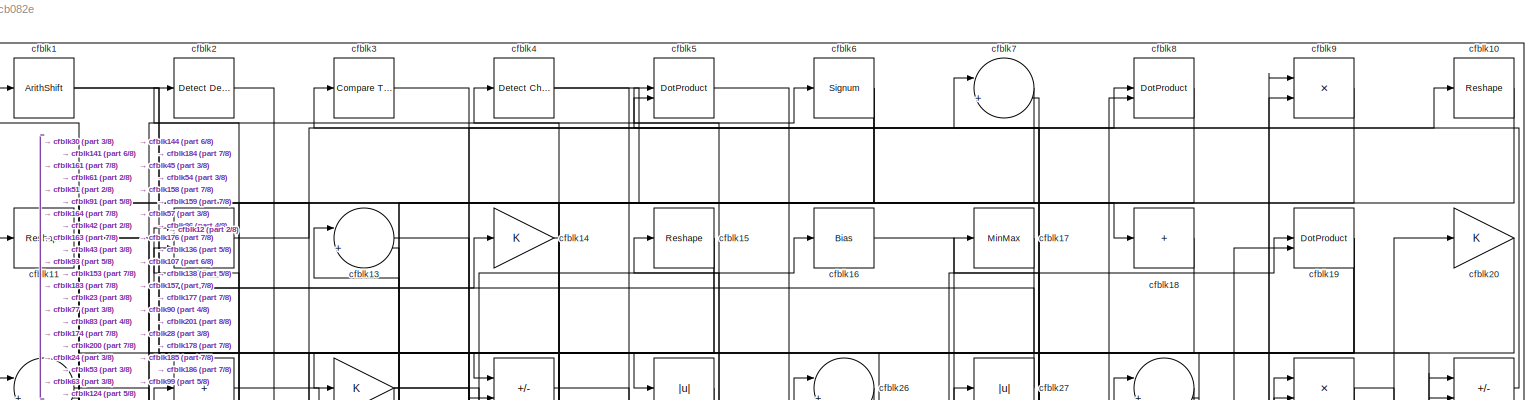
[diagram: root canvas - part 1/8, full width, top band]
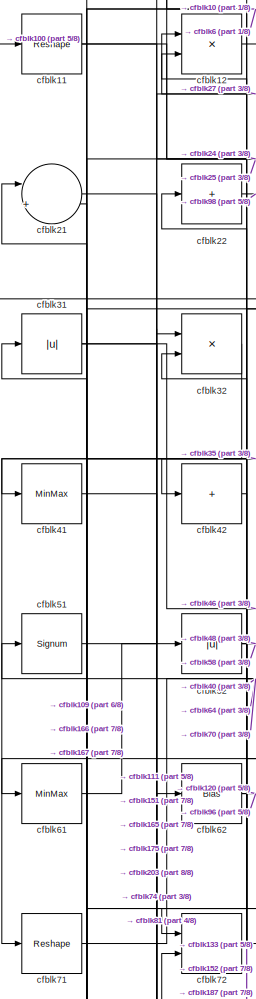
[diagram: root canvas - part 2/8, top left region]
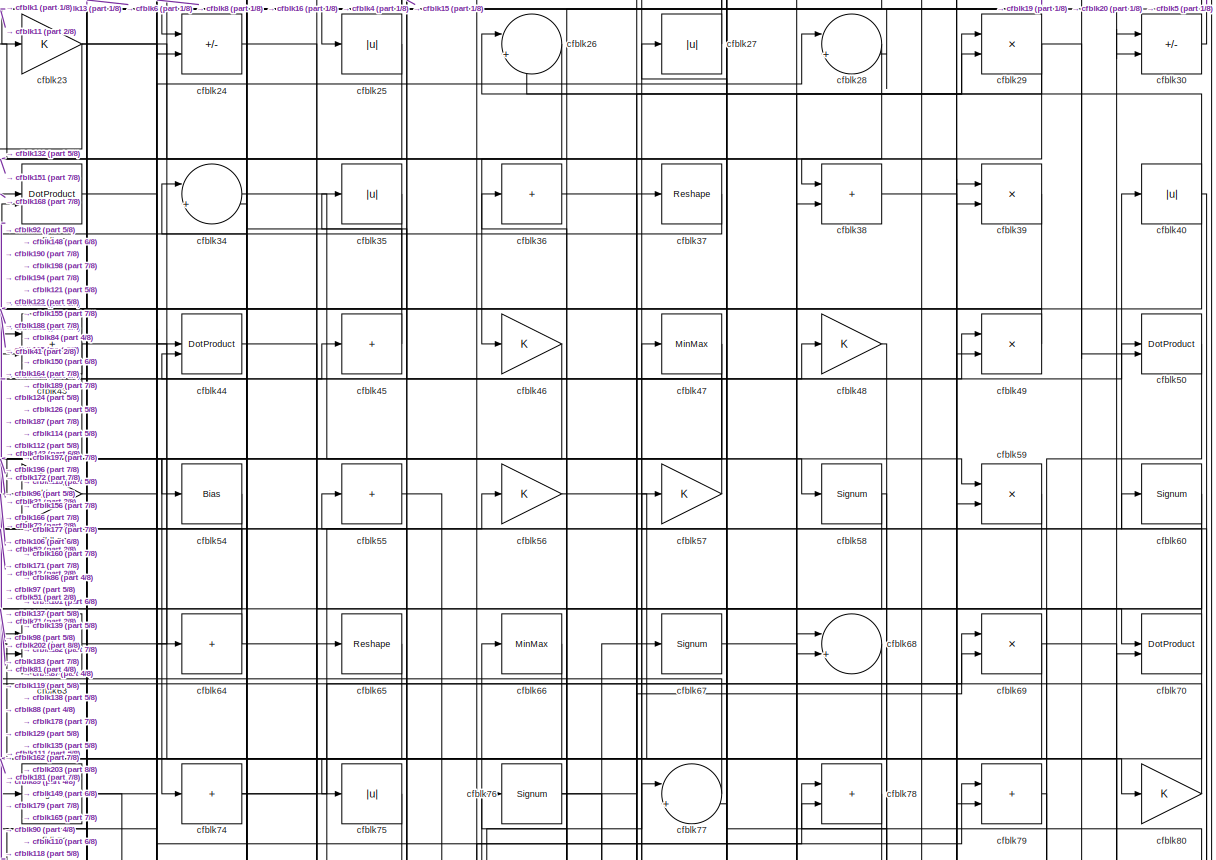
[diagram: root canvas - part 3/8, full width, top band]
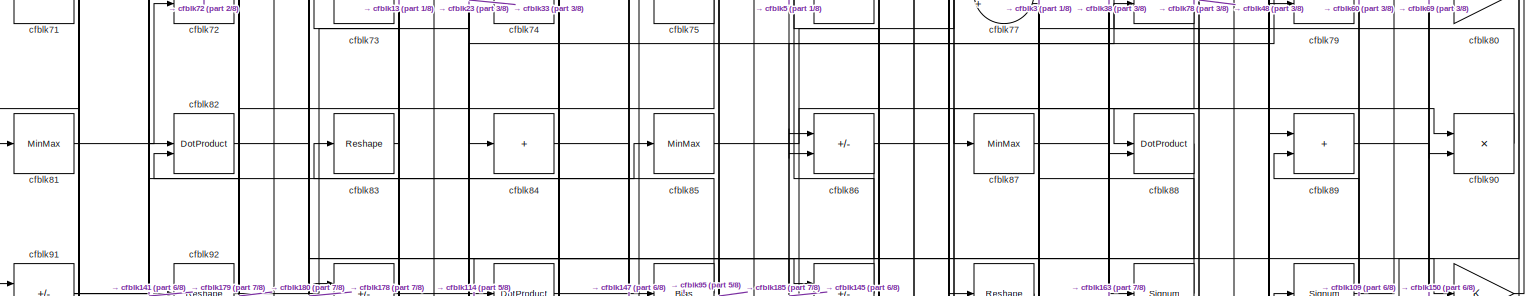
[diagram: root canvas - part 4/8, full width, middle band]
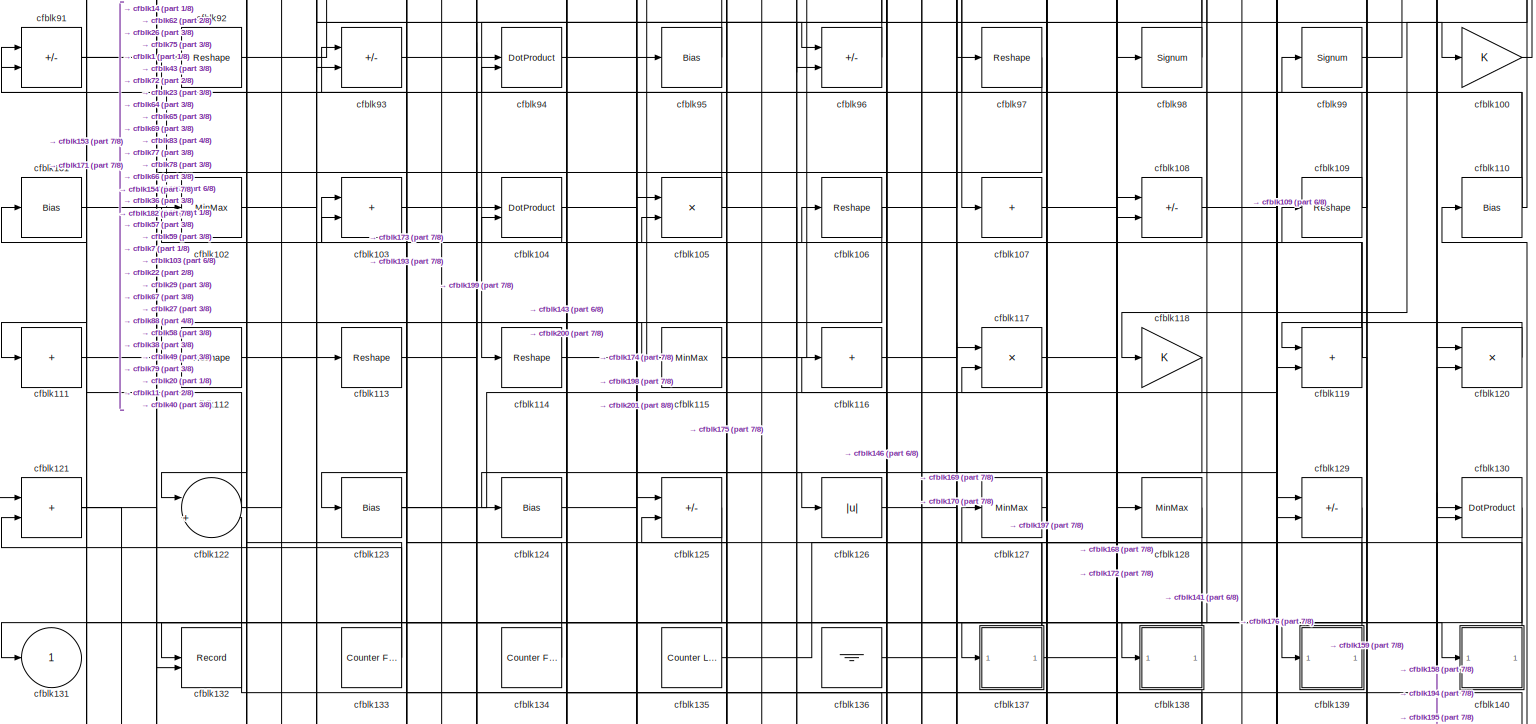
[diagram: root canvas - part 5/8, full width, middle band]
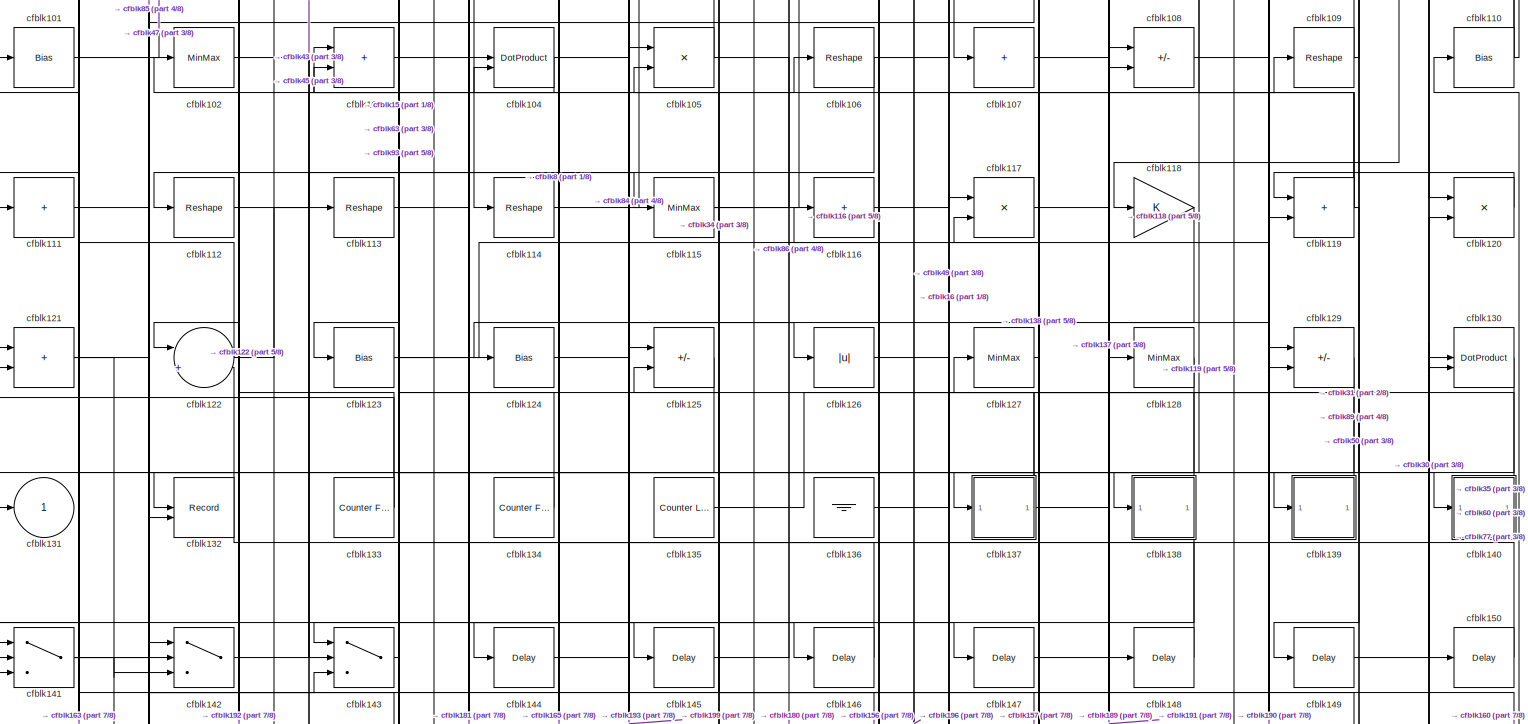
[diagram: root canvas - part 6/8, full width, middle band]
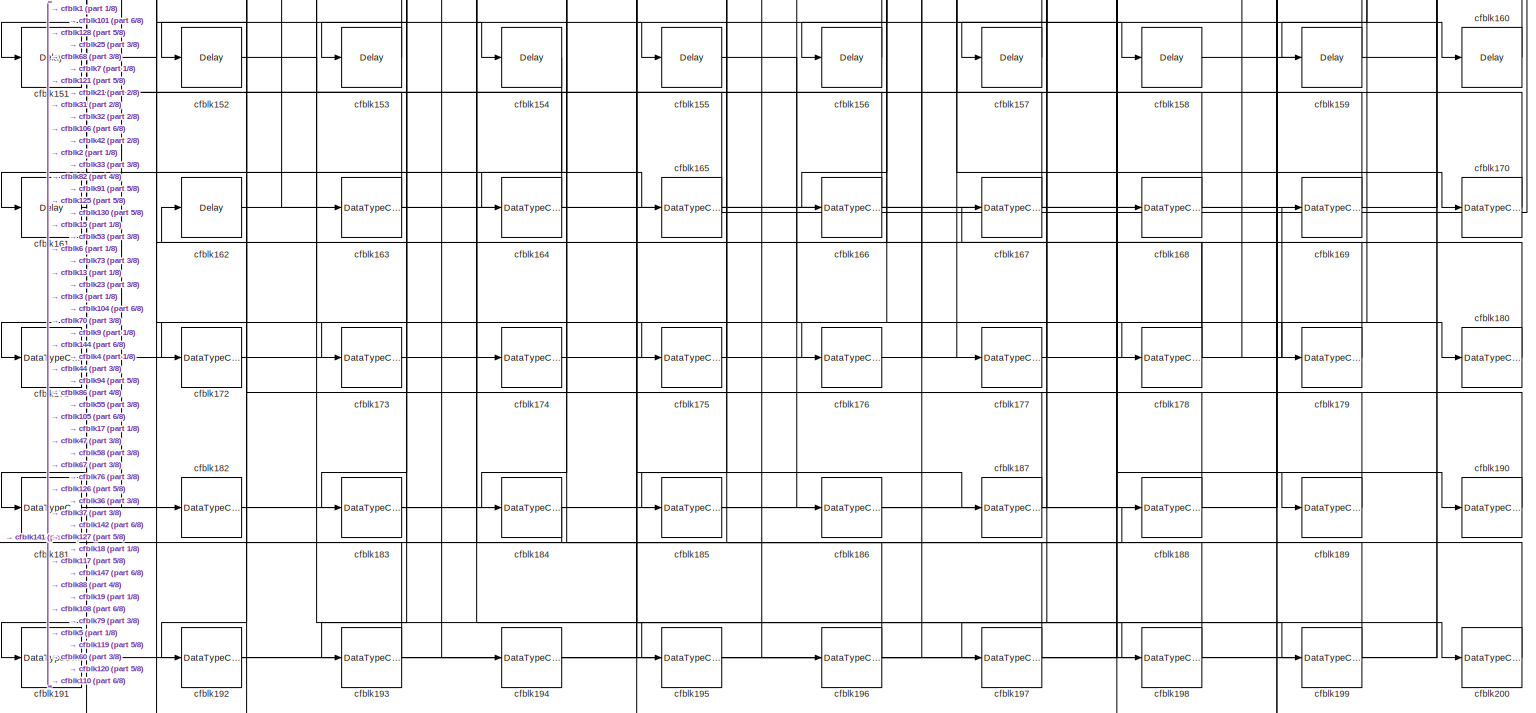
[diagram: root canvas - part 7/8, full width, bottom band]
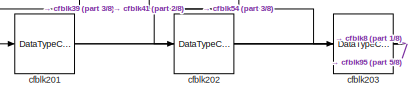
[diagram: root canvas - part 8/8, bottom left region]
MODEL slx_cdcd4fcb082e
KIND model
CONFIG AbsTol = auto
CONFIG EnableMultiTasking = off
CONFIG FixedStep = auto
CONFIG MaxStep = auto
CONFIG MinStep = auto
CONFIG RelTol = 1e-3
CONFIG SampleTimeConstraint = Unconstrained
CONFIG SolverName = VariableStepAuto
CONFIG StartTime = 0.0
CONFIG StopTime = 10.0
BLOCK [ArithShift] cfblk1
  BitShiftNumber = 8
  InputPortMap = u0
BLOCK [Reshape] cfblk10
BLOCK [Gain] cfblk100
BLOCK [Bias] cfblk101
  Bias = 0.0
  SaturateOnIntegerOverflow = off
BLOCK [MinMax] cfblk102
BLOCK [Sum] cfblk103
  IconShape = rectangular
BLOCK [DotProduct] cfblk104
  OutDataTypeStr = Inherit: Inherit via internal rule
BLOCK [Product] cfblk105
  Inputs = */
  RndMeth = Zero
  SaturateOnIntegerOverflow = on
BLOCK [Reshape] cfblk106
BLOCK [Sum] cfblk107
  IconShape = rectangular
  Inputs = +
BLOCK [Sum] cfblk108
  IconShape = rectangular
  Inputs = +-
BLOCK [Reshape] cfblk109
BLOCK [Reshape] cfblk11
BLOCK [Bias] cfblk110
  Bias = 0.0
  SaturateOnIntegerOverflow = off
BLOCK [Sum] cfblk111
  IconShape = rectangular
  Inputs = +
BLOCK [Reshape] cfblk112
BLOCK [Reshape] cfblk113
BLOCK [Reshape] cfblk114
BLOCK [MinMax] cfblk115
BLOCK [Sum] cfblk116
  IconShape = rectangular
  Inputs = +
BLOCK [Product] cfblk117
  Inputs = */
  RndMeth = Zero
  SaturateOnIntegerOverflow = on
BLOCK [Gain] cfblk118
BLOCK [Sum] cfblk119
  IconShape = rectangular
BLOCK [Product] cfblk12
  Inputs = */
  RndMeth = Zero
  SaturateOnIntegerOverflow = on
BLOCK [Product] cfblk120
  Inputs = */
  RndMeth = Zero
  SaturateOnIntegerOverflow = on
BLOCK [Sum] cfblk121
  IconShape = rectangular
BLOCK [Sum] cfblk122
  Inputs = |++
BLOCK [Bias] cfblk123
  Bias = 0.0
  SaturateOnIntegerOverflow = off
BLOCK [Bias] cfblk124
  Bias = 0.0
  SaturateOnIntegerOverflow = off
BLOCK [Sum] cfblk125
  IconShape = rectangular
  Inputs = +-
BLOCK [Abs] cfblk126
  SaturateOnIntegerOverflow = off
BLOCK [MinMax] cfblk127
BLOCK [MinMax] cfblk128
BLOCK [Sum] cfblk129
  IconShape = rectangular
  Inputs = +-
BLOCK [Sum] cfblk13
  Inputs = |++
BLOCK [DotProduct] cfblk130
  OutDataTypeStr = Inherit: Inherit via internal rule
BLOCK [Outport] cfblk131
  VectorParamsAs1DForOutWhenUnconnected = off
BLOCK [Record] cfblk132
  CompatibilityTag = XY
  FileSettingsInternal = {"entries":[{"content":{"excelSettings":{"content":{},"type":"Streamout.ExcelSettings"}},"type":"Streamout.FileSettingStorage","uuid":""}],"packageUris":["http:\/\/schema.mathworks.com\/mf0\/streamout_blocks\/R2020a"],"version":"1.0"}
  Layout = [1 1]
  SignalsInternal = {"entries":[{"content":{"signals":[{"content":{"blockPath":[],"dimensions":[1],"domain":"","lineColor":"#a2142f","plots":[1],"port":1,"signalID":6116,"signalName":"XY Graph:1"},"type":"RecordBlkView.Signal","uuid":""},{"content":{"blockPath":[],"dimensions":[1],"domain":"","lineColor":"#139fff","plots":[1],"port":2,"signalID":6119,"signalName":"XY Graph:2"},"type":"RecordBlkView.Signal","uuid":""}...<+146ch>
  VisualizationBindings = {"xyplotplugin":{"info":[{"series":[{"bindingParametersList":[{"parameter":"X-Axis","signalID":6116,"signalName":"XY Graph:1"},{"parameter":"Y-Axis","signalID":6119,"signalName":"XY Graph:2"}],"seriesID":23883}],"subplotID":1}]}}
  st = -1
BLOCK [Reference] cfblk133  REF=hdlsllib/Sources/Counter
Free-Running
  SourceBlock = hdlsllib/Sources/Counter\nFree-Running
  SourceType = Counter Free-Running
BLOCK [Reference] cfblk134  REF=hdlsllib/Sources/Counter
Free-Running
  SourceBlock = hdlsllib/Sources/Counter\nFree-Running
  SourceType = Counter Free-Running
BLOCK [Reference] cfblk135  REF=hdlsllib/Sources/Counter
Limited
  SourceBlock = hdlsllib/Sources/Counter\nLimited
  SourceType = Counter Limited
BLOCK [Ground] cfblk136
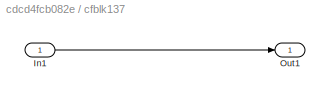
BLOCK [SubSystem] cfblk137
  LibrarySourceBlock = hdlsllib/Ports &\nSubsystems/Subsystem
BLOCK [Inport] cfblk137/In1
BLOCK [Outport] cfblk137/Out1
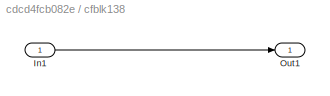
BLOCK [SubSystem] cfblk138
  LibrarySourceBlock = hdlsllib/Ports &\nSubsystems/Subsystem
BLOCK [Inport] cfblk138/In1
BLOCK [Outport] cfblk138/Out1
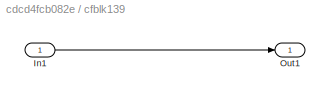
BLOCK [SubSystem] cfblk139
  LibrarySourceBlock = hdlsllib/Ports &\nSubsystems/Subsystem
BLOCK [Inport] cfblk139/In1
BLOCK [Outport] cfblk139/Out1
BLOCK [Gain] cfblk14
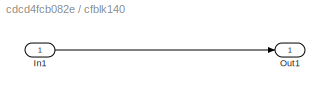
BLOCK [SubSystem] cfblk140
  LibrarySourceBlock = hdlsllib/Ports &\nSubsystems/Subsystem
BLOCK [Inport] cfblk140/In1
BLOCK [Outport] cfblk140/Out1
BLOCK [Switch] cfblk141
  InputSameDT = off
  SaturateOnIntegerOverflow = off
BLOCK [Switch] cfblk142
  InputSameDT = off
  SaturateOnIntegerOverflow = off
BLOCK [Switch] cfblk143
  InputSameDT = off
  SaturateOnIntegerOverflow = off
BLOCK [Delay] cfblk144
  InputPortMap = u0
  SampleTime = 1
BLOCK [Delay] cfblk145
  InputPortMap = u0
  SampleTime = 1
BLOCK [Delay] cfblk146
  InputPortMap = u0
  SampleTime = 1
BLOCK [Delay] cfblk147
  InputPortMap = u0
  SampleTime = 1
BLOCK [Delay] cfblk148
  InputPortMap = u0
  SampleTime = 1
BLOCK [Delay] cfblk149
  InputPortMap = u0
  SampleTime = 1
BLOCK [Reshape] cfblk15
BLOCK [Delay] cfblk150
  InputPortMap = u0
  SampleTime = 1
BLOCK [Delay] cfblk151
  InputPortMap = u0
  SampleTime = 1
BLOCK [Delay] cfblk152
  InputPortMap = u0
  SampleTime = 1
BLOCK [Delay] cfblk153
  InputPortMap = u0
  SampleTime = 1
BLOCK [Delay] cfblk154
  InputPortMap = u0
  SampleTime = 1
BLOCK [Delay] cfblk155
  InputPortMap = u0
  SampleTime = 1
BLOCK [Delay] cfblk156
  InputPortMap = u0
  SampleTime = 1
BLOCK [Delay] cfblk157
  InputPortMap = u0
  SampleTime = 1
BLOCK [Delay] cfblk158
  InputPortMap = u0
  SampleTime = 1
BLOCK [Delay] cfblk159
  InputPortMap = u0
  SampleTime = 1
BLOCK [Bias] cfblk16
  Bias = 0.0
  SaturateOnIntegerOverflow = off
BLOCK [Delay] cfblk160
  InputPortMap = u0
  SampleTime = 1
BLOCK [Delay] cfblk161
  InputPortMap = u0
  SampleTime = 1
BLOCK [Delay] cfblk162
  InputPortMap = u0
  SampleTime = 1
BLOCK [DataTypeConversion] cfblk163
  RndMeth = Floor
  SaturateOnIntegerOverflow = off
BLOCK [DataTypeConversion] cfblk164
  OutDataTypeStr = uint8
  RndMeth = Floor
  SaturateOnIntegerOverflow = off
BLOCK [DataTypeConversion] cfblk165
  RndMeth = Floor
  SaturateOnIntegerOverflow = off
BLOCK [DataTypeConversion] cfblk166
  OutDataTypeStr = uint8
  RndMeth = Floor
  SaturateOnIntegerOverflow = off
BLOCK [DataTypeConversion] cfblk167
  OutDataTypeStr = uint8
  RndMeth = Floor
  SaturateOnIntegerOverflow = off
BLOCK [DataTypeConversion] cfblk168
  OutDataTypeStr = uint8
  RndMeth = Floor
  SaturateOnIntegerOverflow = off
BLOCK [DataTypeConversion] cfblk169
  OutDataTypeStr = uint8
  RndMeth = Floor
  SaturateOnIntegerOverflow = off
BLOCK [MinMax] cfblk17
BLOCK [DataTypeConversion] cfblk170
  OutDataTypeStr = uint8
  RndMeth = Floor
  SaturateOnIntegerOverflow = off
BLOCK [DataTypeConversion] cfblk171
  OutDataTypeStr = uint8
  RndMeth = Floor
  SaturateOnIntegerOverflow = off
BLOCK [DataTypeConversion] cfblk172
  OutDataTypeStr = uint8
  RndMeth = Floor
  SaturateOnIntegerOverflow = off
BLOCK [DataTypeConversion] cfblk173
  OutDataTypeStr = uint8
  RndMeth = Floor
  SaturateOnIntegerOverflow = off
BLOCK [DataTypeConversion] cfblk174
  OutDataTypeStr = uint8
  RndMeth = Floor
  SaturateOnIntegerOverflow = off
BLOCK [DataTypeConversion] cfblk175
  OutDataTypeStr = uint8
  RndMeth = Floor
  SaturateOnIntegerOverflow = off
BLOCK [DataTypeConversion] cfblk176
  OutDataTypeStr = uint8
  RndMeth = Floor
  SaturateOnIntegerOverflow = off
BLOCK [DataTypeConversion] cfblk177
  OutDataTypeStr = uint8
  RndMeth = Floor
  SaturateOnIntegerOverflow = off
BLOCK [DataTypeConversion] cfblk178
  RndMeth = Floor
  SaturateOnIntegerOverflow = off
BLOCK [DataTypeConversion] cfblk179
  OutDataTypeStr = uint8
  RndMeth = Floor
  SaturateOnIntegerOverflow = off
BLOCK [Sum] cfblk18
  IconShape = rectangular
  Inputs = +
BLOCK [DataTypeConversion] cfblk180
  OutDataTypeStr = uint8
  RndMeth = Floor
  SaturateOnIntegerOverflow = off
BLOCK [DataTypeConversion] cfblk181
  OutDataTypeStr = uint8
  RndMeth = Floor
  SaturateOnIntegerOverflow = off
BLOCK [DataTypeConversion] cfblk182
  OutDataTypeStr = uint8
  RndMeth = Floor
  SaturateOnIntegerOverflow = off
BLOCK [DataTypeConversion] cfblk183
  OutDataTypeStr = uint8
  RndMeth = Floor
  SaturateOnIntegerOverflow = off
BLOCK [DataTypeConversion] cfblk184
  OutDataTypeStr = uint8
  RndMeth = Floor
  SaturateOnIntegerOverflow = off
BLOCK [DataTypeConversion] cfblk185
  OutDataTypeStr = uint8
  RndMeth = Floor
  SaturateOnIntegerOverflow = off
BLOCK [DataTypeConversion] cfblk186
  OutDataTypeStr = uint8
  RndMeth = Floor
  SaturateOnIntegerOverflow = off
BLOCK [DataTypeConversion] cfblk187
  RndMeth = Floor
  SaturateOnIntegerOverflow = off
BLOCK [DataTypeConversion] cfblk188
  OutDataTypeStr = uint8
  RndMeth = Floor
  SaturateOnIntegerOverflow = off
BLOCK [DataTypeConversion] cfblk189
  OutDataTypeStr = uint8
  RndMeth = Floor
  SaturateOnIntegerOverflow = off
BLOCK [DotProduct] cfblk19
  OutDataTypeStr = Inherit: Inherit via internal rule
BLOCK [DataTypeConversion] cfblk190
  OutDataTypeStr = uint8
  RndMeth = Floor
  SaturateOnIntegerOverflow = off
BLOCK [DataTypeConversion] cfblk191
  OutDataTypeStr = uint8
  RndMeth = Floor
  SaturateOnIntegerOverflow = off
BLOCK [DataTypeConversion] cfblk192
  OutDataTypeStr = uint8
  RndMeth = Floor
  SaturateOnIntegerOverflow = off
BLOCK [DataTypeConversion] cfblk193
  RndMeth = Floor
  SaturateOnIntegerOverflow = off
BLOCK [DataTypeConversion] cfblk194
  OutDataTypeStr = uint8
  RndMeth = Floor
  SaturateOnIntegerOverflow = off
BLOCK [DataTypeConversion] cfblk195
  OutDataTypeStr = uint8
  RndMeth = Floor
  SaturateOnIntegerOverflow = off
BLOCK [DataTypeConversion] cfblk196
  RndMeth = Floor
  SaturateOnIntegerOverflow = off
BLOCK [DataTypeConversion] cfblk197
  OutDataTypeStr = uint8
  RndMeth = Floor
  SaturateOnIntegerOverflow = off
BLOCK [DataTypeConversion] cfblk198
  OutDataTypeStr = uint8
  RndMeth = Floor
  SaturateOnIntegerOverflow = off
BLOCK [DataTypeConversion] cfblk199
  OutDataTypeStr = uint8
  RndMeth = Floor
  SaturateOnIntegerOverflow = off
BLOCK [Reference] cfblk2  REF=simulink/Logic and Bit
Operations/Detect
Decrease
  LibrarySourceBlock = hdlsllib/Logic and Bit\nOperations/Detect\nDecrease
  SourceBlock = simulink/Logic and Bit\nOperations/Detect\nDecrease
  SourceType = Detect Decrease
BLOCK [Gain] cfblk20
BLOCK [DataTypeConversion] cfblk200
  OutDataTypeStr = uint8
  RndMeth = Floor
  SaturateOnIntegerOverflow = off
BLOCK [DataTypeConversion] cfblk201
  RndMeth = Floor
  SaturateOnIntegerOverflow = off
BLOCK [DataTypeConversion] cfblk202
  OutDataTypeStr = uint8
  RndMeth = Floor
  SaturateOnIntegerOverflow = off
BLOCK [DataTypeConversion] cfblk203
  OutDataTypeStr = uint8
  RndMeth = Floor
  SaturateOnIntegerOverflow = off
BLOCK [Sum] cfblk21
  Inputs = |++
BLOCK [Sum] cfblk22
  IconShape = rectangular
  Inputs = +
BLOCK [Gain] cfblk23
BLOCK [Sum] cfblk24
  IconShape = rectangular
  Inputs = +-
BLOCK [Abs] cfblk25
  SaturateOnIntegerOverflow = off
BLOCK [Sum] cfblk26
  Inputs = |++
BLOCK [Abs] cfblk27
  SaturateOnIntegerOverflow = off
BLOCK [Sum] cfblk28
  Inputs = |++
BLOCK [Product] cfblk29
  Inputs = */
  RndMeth = Zero
  SaturateOnIntegerOverflow = on
BLOCK [Reference] cfblk3  REF=hdlsllib/Logic and Bit
Operations/Compare
To Constant
  SourceBlock = hdlsllib/Logic and Bit\nOperations/Compare\nTo Constant
  SourceType = Compare To Constant
BLOCK [Sum] cfblk30
  IconShape = rectangular
  Inputs = +-
BLOCK [Abs] cfblk31
  SaturateOnIntegerOverflow = off
BLOCK [Product] cfblk32
  Inputs = */
  RndMeth = Zero
  SaturateOnIntegerOverflow = on
BLOCK [DotProduct] cfblk33
  OutDataTypeStr = Inherit: Inherit via internal rule
BLOCK [Sum] cfblk34
  Inputs = |++
BLOCK [Abs] cfblk35
  SaturateOnIntegerOverflow = off
BLOCK [Sum] cfblk36
  IconShape = rectangular
  Inputs = +
BLOCK [Reshape] cfblk37
BLOCK [Sum] cfblk38
  IconShape = rectangular
BLOCK [Product] cfblk39
  Inputs = */
  RndMeth = Zero
  SaturateOnIntegerOverflow = on
BLOCK [Reference] cfblk4  REF=simulink/Logic and Bit
Operations/Detect
Change
  LibrarySourceBlock = hdlsllib/Logic and Bit\nOperations/Detect\nChange
  SourceBlock = simulink/Logic and Bit\nOperations/Detect\nChange
  SourceType = Detect Change
BLOCK [Abs] cfblk40
  SaturateOnIntegerOverflow = off
BLOCK [MinMax] cfblk41
BLOCK [Sum] cfblk42
  IconShape = rectangular
  Inputs = +
BLOCK [Sum] cfblk43
  IconShape = rectangular
BLOCK [DotProduct] cfblk44
  OutDataTypeStr = Inherit: Inherit via internal rule
BLOCK [Sum] cfblk45
  IconShape = rectangular
  Inputs = +
BLOCK [Gain] cfblk46
BLOCK [MinMax] cfblk47
BLOCK [Gain] cfblk48
BLOCK [Product] cfblk49
  Inputs = */
  RndMeth = Zero
  SaturateOnIntegerOverflow = on
BLOCK [DotProduct] cfblk5
  OutDataTypeStr = Inherit: Inherit via internal rule
BLOCK [DotProduct] cfblk50
  OutDataTypeStr = Inherit: Inherit via internal rule
BLOCK [Signum] cfblk51
BLOCK [Abs] cfblk52
  SaturateOnIntegerOverflow = off
BLOCK [Gain] cfblk53
BLOCK [Bias] cfblk54
  Bias = 0.0
  SaturateOnIntegerOverflow = off
BLOCK [Sum] cfblk55
  IconShape = rectangular
  Inputs = +
BLOCK [Gain] cfblk56
BLOCK [Gain] cfblk57
BLOCK [Signum] cfblk58
BLOCK [Product] cfblk59
  Inputs = */
  RndMeth = Zero
  SaturateOnIntegerOverflow = on
BLOCK [Signum] cfblk6
BLOCK [Signum] cfblk60
BLOCK [MinMax] cfblk61
BLOCK [Bias] cfblk62
  Bias = 0.0
  SaturateOnIntegerOverflow = off
BLOCK [Sum] cfblk63
  IconShape = rectangular
BLOCK [Sum] cfblk64
  IconShape = rectangular
  Inputs = +
BLOCK [Reshape] cfblk65
BLOCK [MinMax] cfblk66
BLOCK [Signum] cfblk67
BLOCK [Sum] cfblk68
  Inputs = |++
BLOCK [Product] cfblk69
  Inputs = */
  RndMeth = Zero
  SaturateOnIntegerOverflow = on
BLOCK [Sum] cfblk7
  Inputs = |++
BLOCK [DotProduct] cfblk70
  OutDataTypeStr = Inherit: Inherit via internal rule
BLOCK [Reshape] cfblk71
BLOCK [Product] cfblk72
  Inputs = */
  RndMeth = Zero
  SaturateOnIntegerOverflow = on
BLOCK [Signum] cfblk73
BLOCK [Sum] cfblk74
  IconShape = rectangular
  Inputs = +
BLOCK [Abs] cfblk75
  SaturateOnIntegerOverflow = off
BLOCK [Signum] cfblk76
BLOCK [Sum] cfblk77
  Inputs = |++
BLOCK [Sum] cfblk78
  IconShape = rectangular
BLOCK [Sum] cfblk79
  IconShape = rectangular
BLOCK [DotProduct] cfblk8
  OutDataTypeStr = Inherit: Inherit via internal rule
BLOCK [Gain] cfblk80
BLOCK [MinMax] cfblk81
BLOCK [DotProduct] cfblk82
  OutDataTypeStr = Inherit: Inherit via internal rule
BLOCK [Reshape] cfblk83
BLOCK [Sum] cfblk84
  IconShape = rectangular
  Inputs = +
BLOCK [MinMax] cfblk85
BLOCK [Sum] cfblk86
  IconShape = rectangular
  Inputs = +-
BLOCK [MinMax] cfblk87
BLOCK [DotProduct] cfblk88
  OutDataTypeStr = Inherit: Inherit via internal rule
BLOCK [Sum] cfblk89
  IconShape = rectangular
BLOCK [Product] cfblk9
  Inputs = */
  RndMeth = Zero
  SaturateOnIntegerOverflow = on
BLOCK [Product] cfblk90
  Inputs = */
  RndMeth = Zero
  SaturateOnIntegerOverflow = on
BLOCK [Sum] cfblk91
  IconShape = rectangular
  Inputs = +-
BLOCK [Reshape] cfblk92
BLOCK [Sum] cfblk93
  IconShape = rectangular
  Inputs = +-
BLOCK [DotProduct] cfblk94
  OutDataTypeStr = Inherit: Inherit via internal rule
BLOCK [Bias] cfblk95
  Bias = 0.0
  SaturateOnIntegerOverflow = off
BLOCK [Sum] cfblk96
  IconShape = rectangular
  Inputs = +-
BLOCK [Reshape] cfblk97
BLOCK [Signum] cfblk98
BLOCK [Signum] cfblk99
LINE cfblk100:1 -> cfblk11:1
LINE cfblk101:1 -> cfblk47:1
LINE cfblk102:1 -> cfblk45:1
LINE cfblk103:1 -> cfblk145:1
NET cfblk104:1 -> cfblk103:2, cfblk146:1
NET cfblk105:1 -> cfblk180:1, cfblk34:1
NET cfblk106:1 -> cfblk192:1, cfblk49:1
LINE cfblk107:1 -> cfblk148:1
LINE cfblk108:1 -> cfblk190:1
NET cfblk109:1 -> cfblk31:1, cfblk89:2
LINE cfblk10:1 -> cfblk61:1
NET cfblk110:1 -> cfblk35:1, cfblk60:1, cfblk77:2
LINE cfblk111:1 -> cfblk62:1
LINE cfblk112:1 -> cfblk115:1
LINE cfblk113:1 -> cfblk99:1
LINE cfblk114:1 -> cfblk69:1
NET cfblk115:1 -> cfblk77:1, cfblk78:2
LINE cfblk116:1 -> cfblk109:1
LINE cfblk117:1 -> cfblk168:1
LINE cfblk118:1 -> cfblk143:1
NET cfblk119:1 -> cfblk102:1, cfblk159:1, cfblk36:1, cfblk78:1
NET cfblk11:1 -> cfblk24:1, cfblk25:1
LINE cfblk120:1 -> cfblk119:1
NET cfblk121:1 -> cfblk154:1, cfblk182:1
NET cfblk122:1 -> cfblk113:1, cfblk91:1
NET cfblk123:1 -> cfblk49:2, cfblk79:1
LINE cfblk124:1 -> cfblk65:1
LINE cfblk125:1 -> cfblk173:1
LINE cfblk126:1 -> cfblk170:1
LINE cfblk127:1 -> cfblk197:1
LINE cfblk128:1 -> cfblk171:1
LINE cfblk129:1 -> cfblk131:1
LINE cfblk12:1 -> cfblk10:1
LINE cfblk130:1 -> cfblk193:1
NET cfblk133:1 -> cfblk121:2, cfblk22:1
LINE cfblk134:1 -> cfblk92:1
LINE cfblk135:1 -> cfblk59:2
LINE cfblk136:1 -> cfblk19:1
LINE cfblk137/In1:1 -> cfblk137/Out1:1
NET cfblk137:1 -> cfblk103:1, cfblk116:1, cfblk29:2
LINE cfblk138/In1:1 -> cfblk138/Out1:1
NET cfblk138:1 -> cfblk141:3, cfblk7:1
LINE cfblk139/In1:1 -> cfblk139/Out1:1
LINE cfblk139:1 -> cfblk57:1
LINE cfblk13:1 -> cfblk200:1
LINE cfblk140/In1:1 -> cfblk140/Out1:1
LINE cfblk140:1 -> cfblk127:1
NET cfblk141:1 -> cfblk142:3, cfblk143:3, cfblk85:1
LINE cfblk142:1 -> cfblk106:1
LINE cfblk143:1 -> cfblk93:1
LINE cfblk144:1 -> cfblk199:1
LINE cfblk145:1 -> cfblk86:1
LINE cfblk146:1 -> cfblk122:2
LINE cfblk147:1 -> cfblk189:1
LINE cfblk148:1 -> cfblk63:2
LINE cfblk149:1 -> cfblk30:1
LINE cfblk14:1 -> cfblk124:1
LINE cfblk150:1 -> cfblk34:2
LINE cfblk151:1 -> cfblk32:1
LINE cfblk152:1 -> cfblk195:1
LINE cfblk153:1 -> cfblk91:2
LINE cfblk154:1 -> cfblk191:1
LINE cfblk155:1 -> cfblk186:1
LINE cfblk156:1 -> cfblk105:2
LINE cfblk157:1 -> cfblk142:2
LINE cfblk158:1 -> cfblk120:2
LINE cfblk159:1 -> cfblk5:2
NET cfblk15:1 -> cfblk141:1, cfblk183:1
LINE cfblk160:1 -> cfblk142:1
LINE cfblk161:1 -> cfblk1:1
LINE cfblk162:1 -> cfblk79:2
NET cfblk163:1 -> cfblk101:1, cfblk88:2
LINE cfblk164:1 -> cfblk2:1
NET cfblk165:1 -> cfblk104:2, cfblk110:1, cfblk70:2
LINE cfblk166:1 -> cfblk21:1
LINE cfblk167:1 -> cfblk21:2
LINE cfblk168:1 -> cfblk33:1
LINE cfblk169:1 -> cfblk117:1
LINE cfblk16:1 -> cfblk107:1
LINE cfblk170:1 -> cfblk117:2
LINE cfblk171:1 -> cfblk37:1
LINE cfblk172:1 -> cfblk128:1
LINE cfblk173:1 -> cfblk169:1
LINE cfblk174:1 -> cfblk125:1
LINE cfblk175:1 -> cfblk125:2
LINE cfblk176:1 -> cfblk119:2
LINE cfblk177:1 -> cfblk17:1
NET cfblk178:1 -> cfblk19:2, cfblk76:1, cfblk7:2
LINE cfblk179:1 -> cfblk82:1
LINE cfblk17:1 -> cfblk176:1
LINE cfblk180:1 -> cfblk82:2
LINE cfblk181:1 -> cfblk104:1
LINE cfblk182:1 -> cfblk68:1
LINE cfblk183:1 -> cfblk68:2
LINE cfblk184:1 -> cfblk188:1
LINE cfblk185:1 -> cfblk9:1
LINE cfblk186:1 -> cfblk9:2
NET cfblk187:1 -> cfblk167:1, cfblk32:2
LINE cfblk188:1 -> cfblk44:1
LINE cfblk189:1 -> cfblk44:2
LINE cfblk18:1 -> cfblk157:1
LINE cfblk190:1 -> cfblk73:1
LINE cfblk191:1 -> cfblk108:1
LINE cfblk192:1 -> cfblk108:2
NET cfblk193:1 -> cfblk105:1, cfblk162:1
LINE cfblk194:1 -> cfblk130:1
LINE cfblk195:1 -> cfblk130:2
NET cfblk196:1 -> cfblk141:2, cfblk67:1
LINE cfblk197:1 -> cfblk55:1
LINE cfblk198:1 -> cfblk53:1
LINE cfblk199:1 -> cfblk94:1
NET cfblk19:1 -> cfblk24:2, cfblk28:2, cfblk43:2
NET cfblk1:1 -> cfblk30:2, cfblk93:2
LINE cfblk200:1 -> cfblk94:2
NET cfblk201:1 -> cfblk8:2, cfblk95:1
LINE cfblk202:1 -> cfblk39:1
LINE cfblk203:1 -> cfblk39:2
LINE cfblk20:1 -> cfblk54:1
LINE cfblk21:1 -> cfblk165:1
LINE cfblk22:1 -> cfblk98:1
NET cfblk23:1 -> cfblk121:1, cfblk155:1, cfblk89:1
LINE cfblk24:1 -> cfblk70:1
LINE cfblk25:1 -> cfblk151:1
LINE cfblk26:1 -> cfblk132:1
LINE cfblk27:1 -> cfblk12:1
LINE cfblk28:1 -> cfblk38:1
NET cfblk29:1 -> cfblk26:2, cfblk46:1, cfblk50:2
LINE cfblk2:1 -> cfblk163:1
LINE cfblk30:1 -> cfblk5:1
NET cfblk31:1 -> cfblk175:1, cfblk74:1
LINE cfblk32:1 -> cfblk71:1
LINE cfblk33:1 -> cfblk84:1
LINE cfblk34:1 -> cfblk59:1
LINE cfblk35:1 -> cfblk41:1
LINE cfblk36:1 -> cfblk160:1
LINE cfblk37:1 -> cfblk33:2
LINE cfblk38:1 -> cfblk129:1
LINE cfblk39:1 -> cfblk201:1
LINE cfblk3:1 -> cfblk174:1
NET cfblk40:1 -> cfblk118:1, cfblk122:1, cfblk26:1
LINE cfblk41:1 -> cfblk203:1
LINE cfblk42:1 -> cfblk152:1
NET cfblk43:1 -> cfblk143:2, cfblk97:1
LINE cfblk44:1 -> cfblk187:1
LINE cfblk45:1 -> cfblk4:1
LINE cfblk46:1 -> cfblk72:1
NET cfblk47:1 -> cfblk156:1, cfblk172:1
LINE cfblk48:1 -> cfblk88:1
LINE cfblk49:1 -> cfblk43:1
NET cfblk4:1 -> cfblk158:1, cfblk18:1
LINE cfblk50:1 -> cfblk149:1
LINE cfblk51:1 -> cfblk6:1
NET cfblk52:1 -> cfblk48:1, cfblk58:1
LINE cfblk53:1 -> cfblk8:1
LINE cfblk54:1 -> cfblk202:1
LINE cfblk55:1 -> cfblk196:1
LINE cfblk56:1 -> cfblk80:1
LINE cfblk57:1 -> cfblk15:1
NET cfblk58:1 -> cfblk138:1, cfblk166:1
LINE cfblk59:1 -> cfblk137:1
LINE cfblk5:1 -> cfblk86:2
NET cfblk60:1 -> cfblk179:1, cfblk81:1
LINE cfblk61:1 -> cfblk52:1
NET cfblk62:1 -> cfblk120:1, cfblk96:2
LINE cfblk63:1 -> cfblk16:1
NET cfblk64:1 -> cfblk126:1, cfblk12:2
LINE cfblk65:1 -> cfblk123:1
LINE cfblk66:1 -> cfblk75:1
LINE cfblk67:1 -> cfblk129:2
LINE cfblk68:1 -> cfblk181:1
NET cfblk69:1 -> cfblk111:1, cfblk90:2
NET cfblk6:1 -> cfblk153:1, cfblk23:1, cfblk42:1
NET cfblk70:1 -> cfblk164:1, cfblk51:1
LINE cfblk71:1 -> cfblk40:1
LINE cfblk72:1 -> cfblk100:1
NET cfblk73:1 -> cfblk194:1, cfblk28:1
NET cfblk74:1 -> cfblk50:1, cfblk56:1
LINE cfblk75:1 -> cfblk112:1
NET cfblk76:1 -> cfblk177:1, cfblk29:1
LINE cfblk77:1 -> cfblk13:2
LINE cfblk78:1 -> cfblk87:1
LINE cfblk79:1 -> cfblk139:1
LINE cfblk7:1 -> cfblk161:1
LINE cfblk80:1 -> cfblk63:1
LINE cfblk81:1 -> cfblk72:2
LINE cfblk82:1 -> cfblk178:1
LINE cfblk83:1 -> cfblk13:1
LINE cfblk84:1 -> cfblk147:1
LINE cfblk85:1 -> cfblk90:1
NET cfblk86:1 -> cfblk185:1, cfblk69:2
LINE cfblk87:1 -> cfblk38:2
LINE cfblk88:1 -> cfblk114:1
LINE cfblk89:1 -> cfblk150:1
LINE cfblk8:1 -> cfblk144:1
LINE cfblk90:1 -> cfblk3:1
NET cfblk91:1 -> cfblk140:1, cfblk14:1
LINE cfblk92:1 -> cfblk64:1
LINE cfblk93:1 -> cfblk96:1
LINE cfblk94:1 -> cfblk198:1
LINE cfblk95:1 -> cfblk83:1
LINE cfblk96:1 -> cfblk66:1
LINE cfblk97:1 -> cfblk132:2
LINE cfblk98:1 -> cfblk27:1
LINE cfblk99:1 -> cfblk20:1
LINE cfblk9:1 -> cfblk184:1
note: NET lines group one-source signal fan-out (src -> all destinations, sorted); 1:1 wires keep LINE
